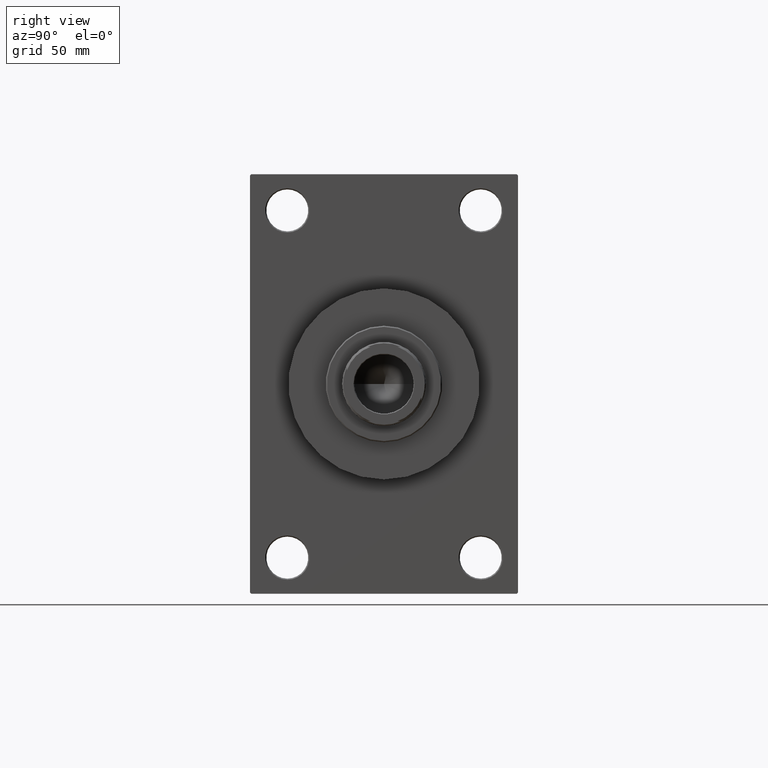
[diagram: clean part render]
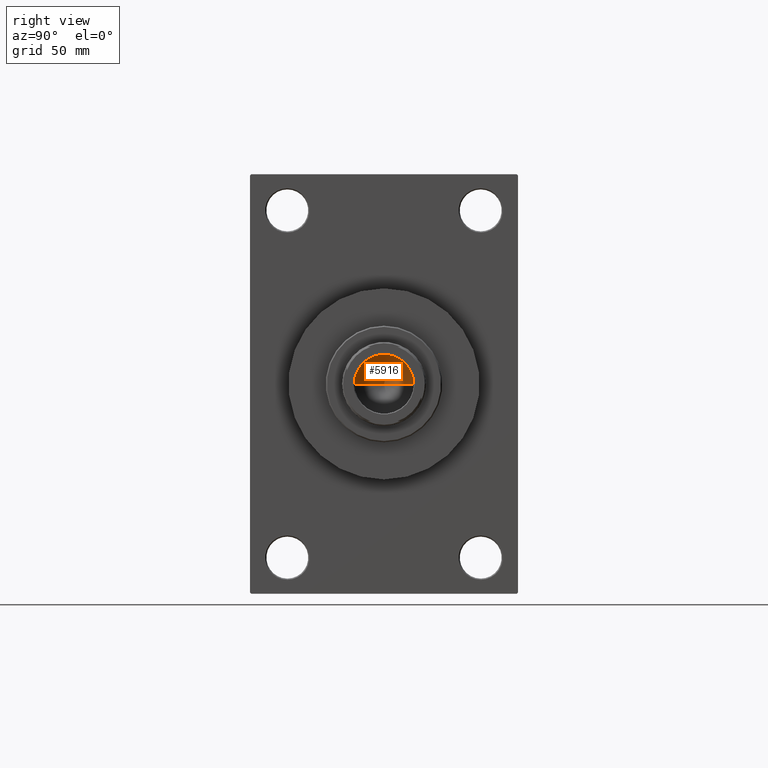
[diagram: same view with one face highlighted and labeled with its STEP entity id]
A machine part, right view. The second image highlights one B-rep face of the part: STEP entity #5916.
In plain terms, the highlighted conical surface has half-angle 59 deg.
Its self-contained STEP definition (entity closure, byte-faithful):
#845 = CARTESIAN_POINT ( 'NONE',  ( -1.410643066818227497E-14, 0.000000000000000000, 113.3390271073986071 ) ) ;
#1755 = DIRECTION ( 'NONE',  ( -0.8571673007021117785, 1.049727191138617956E-16, 0.5150380749100550437 ) ) ;
#2000 = CARTESIAN_POINT ( 'NONE',  ( -12.74999999999998934, 1.561424668912873928E-15, 121.0000000000000142 ) ) ;
#2392 = EDGE_LOOP ( 'NONE', ( #25651, #19165, #45380 ) ) ;
#5916 = ADVANCED_FACE ( 'NONE', ( #12165 ), #44216, .F. ) ;
#6862 = CARTESIAN_POINT ( 'NONE',  ( 0.000000000000000000, 0.000000000000000000, 121.0000000000000142 ) ) ;
#7841 = DIRECTION ( 'NONE',  ( -0.000000000000000000, -0.000000000000000000, 1.000000000000000000 ) ) ;
#9508 = CARTESIAN_POINT ( 'NONE',  ( -12.74999999999998934, 1.561424668912873928E-15, 121.0000000000000142 ) ) ;
#12165 = FACE_OUTER_BOUND ( 'NONE', #2392, .T. ) ;
#14951 = AXIS2_PLACEMENT_3D ( 'NONE', #45198, #7841, #26875 ) ;
#16910 = EDGE_CURVE ( 'NONE', #47131, #40085, #31414, .T. ) ;
#19165 = ORIENTED_EDGE ( 'NONE', *, *, #16910, .T. ) ;
#19908 = VECTOR ( 'NONE', #1755, 1000.000000000000000 ) ;
#21365 = CARTESIAN_POINT ( 'NONE',  ( 12.74999999999998934, 0.000000000000000000, 121.0000000000000142 ) ) ;
#21548 = DIRECTION ( 'NONE',  ( -0.000000000000000000, -0.000000000000000000, 1.000000000000000000 ) ) ;
#25651 = ORIENTED_EDGE ( 'NONE', *, *, #30910, .F. ) ;
#26796 = EDGE_CURVE ( 'NONE', #40085, #34315, #45565, .T. ) ;
#26875 = DIRECTION ( 'NONE',  ( 1.000000000000000000, 0.000000000000000000, 0.000000000000000000 ) ) ;
#27061 = AXIS2_PLACEMENT_3D ( 'NONE', #6862, #21548, #27840 ) ;
#27840 = DIRECTION ( 'NONE',  ( 1.000000000000000000, 0.000000000000000000, 0.000000000000000000 ) ) ;
#29590 = CARTESIAN_POINT ( 'NONE',  ( 12.74999999999998934, 0.000000000000000000, 121.0000000000000142 ) ) ;
#30295 = VECTOR ( 'NONE', #31994, 1000.000000000000000 ) ;
#30910 = EDGE_CURVE ( 'NONE', #47131, #34315, #36074, .T. ) ;
#31414 = LINE ( 'NONE', #2000, #19908 ) ;
#31994 = DIRECTION ( 'NONE',  ( 0.8571673007021117785, 0.000000000000000000, 0.5150380749100550437 ) ) ;
#34315 = VERTEX_POINT ( 'NONE', #29590 ) ;
#36074 = LINE ( 'NONE', #21365, #30295 ) ;
#40085 = VERTEX_POINT ( 'NONE', #9508 ) ;
#44216 = CONICAL_SURFACE ( 'NONE', #14951, 12.74999999999998934, 1.029744258676653423 ) ;
#45198 = CARTESIAN_POINT ( 'NONE',  ( 0.000000000000000000, 0.000000000000000000, 121.0000000000000142 ) ) ;
#45380 = ORIENTED_EDGE ( 'NONE', *, *, #26796, .T. ) ;
#45565 = CIRCLE ( 'NONE', #27061, 12.74999999999998934 ) ;
#47131 = VERTEX_POINT ( 'NONE', #845 ) ;